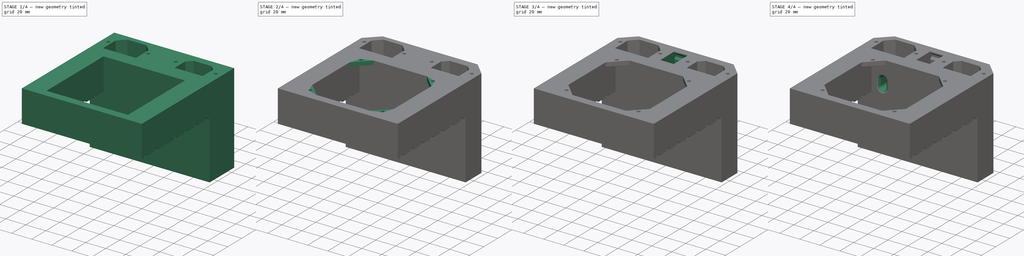
[diagram: build sequence overview — one tinted view per stage of 4, left to right]
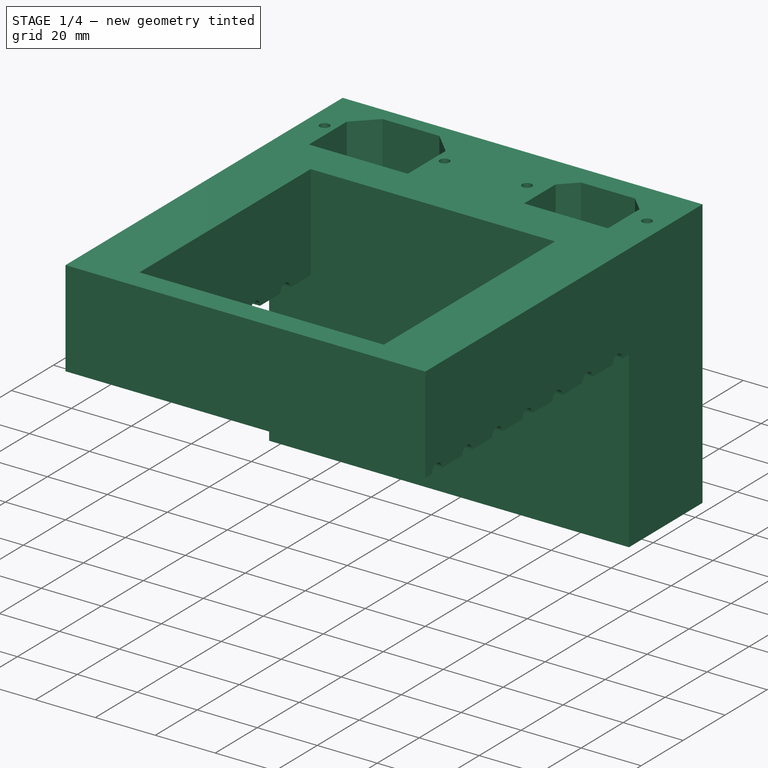
[diagram: stage 1 of 4 — iso view after this stage's code; geometry added in this stage tinted green]
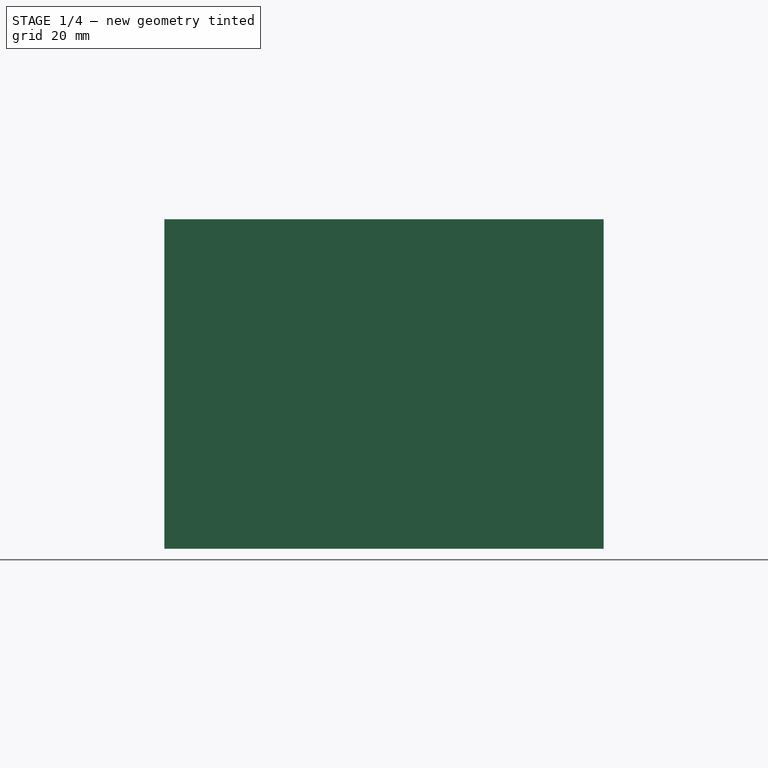
[diagram: stage 1 of 4 — front view after this stage's code; geometry added in this stage tinted green]
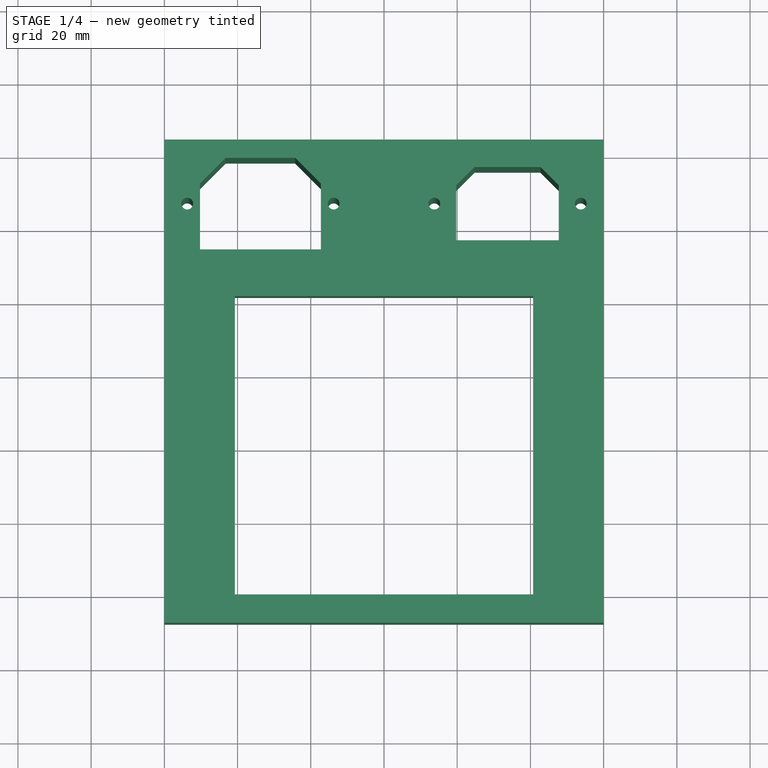
[diagram: stage 1 of 4 — top view after this stage's code; geometry added in this stage tinted green]
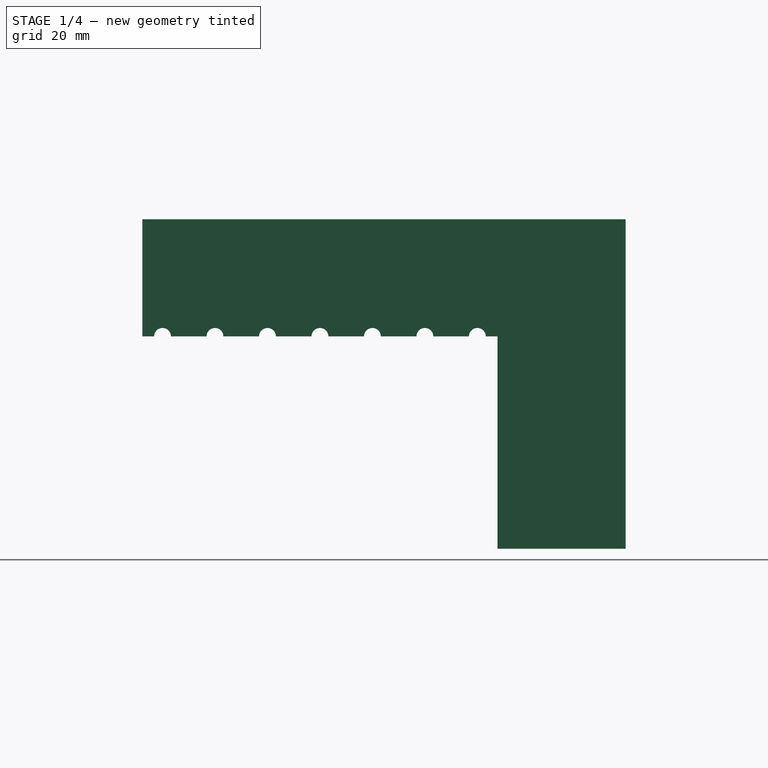
[diagram: stage 1 of 4 — right view after this stage's code; geometry added in this stage tinted green]
FCSTD DOCUMENT  (FreeCAD 0.18R15969 (Git))
Label: heatsinkmount
License: All rights reserved
LicenseURL: http://en.wikipedia.org/wiki/All_rights_reserved
objects: Sketcher::SketchObject×7, PartDesign::Pocket×5, PartDesign::Pad×2, PartDesign::Chamfer×2, PartDesign::Fillet×1, PartDesign::Body×1
note: 25 computed .brp shape members not serialized (recipe doc carries the construction recipe); baked Part::Feature solids carry a one-line shape summary decoded from their .brp

FEATURE [Sketcher::SketchObject] Sketch
  MapMode = 5
  Support = -> [XY_Plane]
  sketch-geometry (53):
    g0: LineSegment StartX=-60 StartY=-48.5 StartZ=0 EndX=60 EndY=-48.5 EndZ=0
    g1: LineSegment StartX=60 StartY=-48.5 StartZ=0 EndX=60 EndY=48.5 EndZ=0
    g2: LineSegment [constr] StartX=60 StartY=48.5 StartZ=0 EndX=-60 EndY=48.5 EndZ=0
    g3: LineSegment StartX=-60 StartY=48.5 StartZ=0 EndX=-60 EndY=-48.5 EndZ=0
    g4: LineSegment [constr] StartX=-60 StartY=48.5 StartZ=0 EndX=0 EndY=0 EndZ=0
    g5: LineSegment [constr] StartX=0 StartY=0 StartZ=0 EndX=60 EndY=48.5 EndZ=0
    g6: LineSegment [constr] StartX=0 StartY=0 StartZ=0 EndX=-60 EndY=-48.5 EndZ=0
    g7: LineSegment StartX=40.75 StartY=-40.75 StartZ=0 EndX=40.75 EndY=40.75 EndZ=0
    g8: LineSegment StartX=40.75 StartY=40.75 StartZ=0 EndX=-40.75 EndY=40.75 EndZ=0
    g9: LineSegment StartX=-40.75 StartY=40.75 StartZ=0 EndX=-40.75 EndY=-40.75 EndZ=0
    g10: LineSegment StartX=-40.75 StartY=-40.75 StartZ=0 EndX=40.75 EndY=-40.75 EndZ=0
    g11: Circle [constr] CenterX=0 CenterY=0 CenterZ=0 NormalX=0 NormalY=0 NormalZ=1 AngleXU=0 Radius=57.6292
    g12: LineSegment StartX=-60 StartY=48.5 StartZ=0 EndX=-60 EndY=83.5 EndZ=0
    g13: LineSegment StartX=-60 StartY=83.5 StartZ=0 EndX=60 EndY=83.5 EndZ=0
    g14: LineSegment StartX=60 StartY=83.5 StartZ=0 EndX=60 EndY=48.5 EndZ=0
    g15: Circle CenterX=-53.75 CenterY=66 CenterZ=0 NormalX=0 NormalY=0 NormalZ=1 AngleXU=0 Radius=1.6
    g16: Circle CenterX=-13.75 CenterY=66 CenterZ=0 NormalX=0 NormalY=0 NormalZ=1 AngleXU=0 Radius=1.6
    g17: Circle CenterX=13.75 CenterY=66 CenterZ=0 NormalX=0 NormalY=0 NormalZ=1 AngleXU=0 Radius=1.6
    g18: Circle CenterX=53.75 CenterY=66 CenterZ=0 NormalX=0 NormalY=0 NormalZ=1 AngleXU=0 Radius=1.6
    g19: LineSegment [constr] StartX=-53.75 StartY=66 StartZ=0 EndX=-13.75 EndY=66 EndZ=0
    g20: LineSegment [constr] StartX=13.75 StartY=66 StartZ=0 EndX=53.75 EndY=66 EndZ=0
    g21: LineSegment [constr] StartX=-53.75 StartY=66 StartZ=0 EndX=-33.75 EndY=83.5 EndZ=0
    g22: LineSegment [constr] StartX=-33.75 StartY=83.5 StartZ=0 EndX=-13.75 EndY=66 EndZ=0
    g23: LineSegment [constr] StartX=13.75 StartY=66 StartZ=0 EndX=33.75 EndY=83.5 EndZ=0
    g24: LineSegment [constr] StartX=33.75 StartY=83.5 StartZ=0 EndX=53.75 EndY=66 EndZ=0
    g25: LineSegment [constr] StartX=-13.75 StartY=66 StartZ=0 EndX=0 EndY=66 EndZ=0
    g26: LineSegment [constr] StartX=0 StartY=66 StartZ=0 EndX=13.75 EndY=66 EndZ=0
    g27: LineSegment [constr] StartX=-50.25 StartY=53.5 StartZ=0 EndX=-17.25 EndY=53.5 EndZ=0
    g28: LineSegment [constr] StartX=-17.25 StartY=53.5 StartZ=0 EndX=-17.25 EndY=78.5 EndZ=0
    g29: LineSegment [constr] StartX=-17.25 StartY=78.5 StartZ=0 EndX=-50.25 EndY=78.5 EndZ=0
    g30: LineSegment [constr] StartX=-50.25 StartY=78.5 StartZ=0 EndX=-50.25 EndY=53.5 EndZ=0
    g31: LineSegment [constr] StartX=19.75 StartY=76 StartZ=0 EndX=47.75 EndY=76 EndZ=0
    g32: LineSegment [constr] StartX=47.75 StartY=76 StartZ=0 EndX=47.75 EndY=56 EndZ=0
    g33: LineSegment [constr] StartX=47.75 StartY=56 StartZ=0 EndX=19.75 EndY=56 EndZ=0
    g34: LineSegment [constr] StartX=19.75 StartY=56 StartZ=0 EndX=19.75 EndY=76 EndZ=0
    g35: LineSegment StartX=-50.25 StartY=53.5 StartZ=0 EndX=-17.25 EndY=53.5 EndZ=0
    g36: LineSegment StartX=-43.25 StartY=78.5 StartZ=0 EndX=-24.25 EndY=78.5 EndZ=0
    g37: LineSegment StartX=-24.25 StartY=78.5 StartZ=0 EndX=-17.25 EndY=71.5 EndZ=0
    g38: LineSegment StartX=-17.25 StartY=71.5 StartZ=0 EndX=-17.25 EndY=53.5 EndZ=0
    g39: LineSegment StartX=-43.25 StartY=78.5 StartZ=0 EndX=-50.25 EndY=71.5 EndZ=0
    g40: LineSegment StartX=-50.25 StartY=71.5 StartZ=0 EndX=-50.25 EndY=53.5 EndZ=0
    g41: LineSegment [constr] StartX=-53.75 StartY=66 StartZ=0 EndX=-50.25 EndY=78.5 EndZ=0
    g42: LineSegment [constr] StartX=-13.75 StartY=66 StartZ=0 EndX=-17.25 EndY=53.5 EndZ=0
    g43: LineSegment [constr] StartX=-13.75 StartY=66 StartZ=0 EndX=-17.25 EndY=78.5 EndZ=0
    g44: LineSegment StartX=19.75 StartY=56 StartZ=0 EndX=47.75 EndY=56 EndZ=0
    g45: LineSegment StartX=47.75 StartY=56 StartZ=0 EndX=47.75 EndY=71 EndZ=0
    g46: LineSegment StartX=19.75 StartY=56 StartZ=0 EndX=19.75 EndY=71 EndZ=0
    g47: LineSegment StartX=19.75 StartY=71 StartZ=0 EndX=24.75 EndY=76 EndZ=0
    g48: LineSegment StartX=42.75 StartY=76 StartZ=0 EndX=47.75 EndY=71 EndZ=0
    g49: LineSegment StartX=24.75 StartY=76 StartZ=0 EndX=42.75 EndY=76 EndZ=0
    g50: LineSegment [constr] StartX=13.75 StartY=66 StartZ=0 EndX=19.75 EndY=76 EndZ=0
    g51: LineSegment [constr] StartX=13.75 StartY=66 StartZ=0 EndX=19.75 EndY=56 EndZ=0
    g52: LineSegment [constr] StartX=53.75 StartY=66 StartZ=0 EndX=47.75 EndY=76 EndZ=0
  constraints (139):
    c: Coincident(g0,g1)
    c: Coincident(g1,g2)
    c: Coincident(g2,g3)
    c: Coincident(g3,g0)
    c: Horizontal(g0)
    c: Horizontal(g2)
    c: Vertical(g1)
    c: Vertical(g3)
    c: Coincident(g4,g2)
    c: Coincident(g4,g-1)
    c: Coincident(g5,g-1)
    c: Coincident(g5,g1)
    c: Coincident(g6,g-1)
    c: Coincident(g6,g0)
    c: Equal(g4,g6)
    c: Equal(g6,g5)
    c: DistanceX(g2,g2) = 120
    c: DistanceY(g3,g3) = 97
    c: Coincident(g7,g8)
    c: Coincident(g8,g9)
    c: Coincident(g9,g10)
    c: Coincident(g10,g7)
    c: Equal(g7,g8)
    c: Equal(g7,g9)
    c: Equal(g7,g10)
    c: PointOnObject(g7,g11)
    c: PointOnObject(g8,g11)
    c: PointOnObject(g9,g11)
    c: PointOnObject(g10,g11)
    c: Coincident(g11,g-1)
    c: Horizontal(g8)
    c: DistanceX(g8,g8) = 81.5
    c: Coincident(g12,g3)
    c: Vertical(g12)
    c: Coincident(g13,g12)
    c: Horizontal(g13)
    c: Coincident(g14,g13)
    c: Coincident(g14,g1)
    c: Vertical(g14)
    c: DistanceY(g12,g12) = 35
    c: Coincident(g19,g15)
    c: Coincident(g19,g16)
    c: Coincident(g20,g17)
    c: Coincident(g20,g18)
    c: Horizontal(g20)
    c: Horizontal(g19)
    c: Equal(g19,g20)
    c: DistanceX(g19,g19) = 40
    c: Radius(g17) = 1.6
    c: Equal(g17,g18)
    c: Equal(g17,g16)
    c: Equal(g17,g15)
    c: Coincident(g21,g15)
    c: PointOnObject(g21,g13)
    c: Coincident(g22,g21)
    c: Coincident(g22,g16)
    c: PointOnObject(g23,g13)
    c: Coincident(g24,g23)
    c: Coincident(g24,g18)
    c: Equal(g24,g23)
    c: Equal(g23,g22)
    c: Equal(g22,g21)
    c: DistanceY(g15,g12) = 17.5
    c: Coincident(g17,g23)
    c: Coincident(g25,g16)
    c: Coincident(g26,g25)
    c: Coincident(g26,g17)
    c: PointOnObject(g25,g-2)
    c: Equal(g26,g25)
    c: Horizontal(g25)
    c: DistanceX(g16,g17) = 27.5
    c: Coincident(g27,g28)
    c: Coincident(g28,g29)
    c: Coincident(g29,g30)
    c: Coincident(g30,g27)
    c: Horizontal(g27)
    c: Horizontal(g29)
    c: Vertical(g28)
    c: Vertical(g30)
    c: DistanceX(g29,g29) = 33
    c: DistanceY(g30,g30) = 25
    c: Coincident(g31,g32)
    c: Coincident(g32,g33)
    c: Coincident(g33,g34)
    c: Coincident(g34,g31)
    c: Horizontal(g31)
    c: Horizontal(g33)
    c: Vertical(g32)
    c: Vertical(g34)
    c: DistanceX(g31,g31) = 28
    c: DistanceY(g32,g32) = 20
    c: PointOnObject(g36,g29)
    c: PointOnObject(g36,g29)
    c: Coincident(g37,g36)
    c: Coincident(g38,g37)
    c: Coincident(g38,g35)
    c: Vertical(g38)
    c: Coincident(g39,g36)
    c: Coincident(g40,g39)
    c: Coincident(g40,g35)
    c: Vertical(g40)
    c: Equal(g40,g38)
    c: Coincident(g35,g27)
    c: Coincident(g35,g27)
    c: Equal(g39,g37)
    c: DistanceY(g40,g40) = 18
    c: DistanceX(g36,g36) = 19
    c: Coincident(g41,g15)
    c: Coincident(g41,g29)
    c: Coincident(g42,g16)
    c: Coincident(g42,g35)
    c: Coincident(g43,g16)
    c: Coincident(g43,g28)
    c: Equal(g43,g42)
    c: Equal(g42,g41)
    c: Coincident(g44,g33)
    c: Coincident(g44,g32)
    c: Coincident(g45,g44)
    c: PointOnObject(g45,g32)
    c: Coincident(g46,g44)
    c: PointOnObject(g46,g34)
    c: Coincident(g47,g46)
    c: PointOnObject(g47,g31)
    c: PointOnObject(g48,g31)
    c: Coincident(g48,g45)
    c: Equal(g48,g47)
    c: Coincident(g49,g47)
    c: Coincident(g49,g48)
    c: Equal(g45,g46)
    c: DistanceY(g46,g46) = 15
    c: DistanceX(g49,g49) = 18
    c: Coincident(g50,g17)
    c: Coincident(g50,g31)
    c: Coincident(g51,g17)
    c: Coincident(g51,g44)
    c: Coincident(g52,g18)
    c: Coincident(g52,g31)
    c: Equal(g52,g50)
    c: Equal(g50,g51)
FEATURE [PartDesign::Pad] Pad
  Length = 90
  Length2 = 100
  Profile = -> Sketch
  Refine = true
  Type = 0
FEATURE [Sketcher::SketchObject] Sketch001
  ExternalGeometry = -> [Pad]
  MapMode = 5
  Placement = pos=(60,0,0) rot=(0.57735,0.57735,0.57735;2.0944rad)
  Support = -> [Pad]
  sketch-geometry (27):
    g0: LineSegment [constr] StartX=-70 StartY=58 StartZ=0 EndX=70 EndY=58 EndZ=0
    g1: LineSegment [constr] StartX=70 StartY=58 StartZ=0 EndX=0 EndY=7.1e-15 EndZ=0
    g2: LineSegment [constr] StartX=-70 StartY=58 StartZ=0 EndX=0 EndY=7.1e-15 EndZ=0
    g3: ArcOfCircle CenterX=-43 CenterY=58 CenterZ=0 NormalX=0 NormalY=0 NormalZ=1 AngleXU=0 Radius=2.3 StartAngle=4e-16 EndAngle=3.14159
    g4: ArcOfCircle CenterX=-28.6667 CenterY=58 CenterZ=0 NormalX=0 NormalY=0 NormalZ=1 AngleXU=0 Radius=2.3 StartAngle=-9e-16 EndAngle=3.14159
    g5: ArcOfCircle CenterX=0 CenterY=58 CenterZ=0 NormalX=0 NormalY=0 NormalZ=1 AngleXU=0 Radius=2.3 StartAngle=-9e-16 EndAngle=3.14159
    g6: ArcOfCircle CenterX=-14.3333 CenterY=58 CenterZ=0 NormalX=0 NormalY=0 NormalZ=1 AngleXU=0 Radius=2.3 StartAngle=-9e-16 EndAngle=3.14159
    g7: ArcOfCircle CenterX=14.3333 CenterY=58 CenterZ=0 NormalX=0 NormalY=0 NormalZ=1 AngleXU=0 Radius=2.3 StartAngle=1.3e-15 EndAngle=3.14159
    g8: ArcOfCircle CenterX=28.6667 CenterY=58 CenterZ=0 NormalX=0 NormalY=0 NormalZ=1 AngleXU=0 Radius=2.3 StartAngle=5e-16 EndAngle=3.14159
    g9: ArcOfCircle CenterX=43 CenterY=58 CenterZ=0 NormalX=0 NormalY=0 NormalZ=1 AngleXU=0 Radius=2.3 StartAngle=8e-16 EndAngle=3.14159
    g10: LineSegment [constr] StartX=-43 StartY=58 StartZ=0 EndX=-28.6667 EndY=58 EndZ=0
    g11: LineSegment [constr] StartX=-28.6667 StartY=58 StartZ=0 EndX=-14.3333 EndY=58 EndZ=0
    g12: LineSegment [constr] StartX=-14.3333 StartY=58 StartZ=0 EndX=0 EndY=58 EndZ=0
    g13: LineSegment [constr] StartX=0 StartY=58 StartZ=0 EndX=14.3333 EndY=58 EndZ=0
    g14: LineSegment [constr] StartX=14.3333 StartY=58 StartZ=0 EndX=28.6667 EndY=58 EndZ=0
    g15: LineSegment [constr] StartX=28.6667 StartY=58 StartZ=0 EndX=43 EndY=58 EndZ=0
    g16: LineSegment StartX=-40.7 StartY=58 StartZ=0 EndX=-30.9667 EndY=58 EndZ=0
    g17: LineSegment StartX=-26.3667 StartY=58 StartZ=0 EndX=-16.6333 EndY=58 EndZ=0
    g18: LineSegment StartX=-12.0333 StartY=58 StartZ=0 EndX=-2.3 EndY=58 EndZ=0
    g19: LineSegment StartX=2.3 StartY=58 StartZ=0 EndX=12.0333 EndY=58 EndZ=0
    g20: LineSegment StartX=16.6333 StartY=58 StartZ=0 EndX=26.3667 EndY=58 EndZ=0
    g21: LineSegment StartX=30.9667 StartY=58 StartZ=0 EndX=40.7 EndY=58 EndZ=0
    g22: LineSegment StartX=-45.3 StartY=58 StartZ=0 EndX=-48.5 EndY=58 EndZ=0
    g23: LineSegment StartX=-48.5 StartY=0 StartZ=0 EndX=-48.5 EndY=58 EndZ=0
    g24: LineSegment StartX=-48.5 StartY=0 StartZ=0 EndX=48.5 EndY=-0.061623 EndZ=0
    g25: LineSegment StartX=48.5 StartY=-0.061623 StartZ=0 EndX=48.5 EndY=58 EndZ=0
    g26: LineSegment StartX=48.5 StartY=58 StartZ=0 EndX=45.3 EndY=58 EndZ=0
  constraints (79):
    c: Horizontal(g0)
    c: Coincident(g1,g0)
    c: Coincident(g1,g-1)
    c: Coincident(g2,g0)
    c: Coincident(g2,g-1)
    c: Equal(g1,g2)
    c: PointOnObject(g3,g0)
    c: PointOnObject(g3,g0)
    c: PointOnObject(g3,g0)
    c: PointOnObject(g4,g0)
    c: PointOnObject(g4,g0)
    c: PointOnObject(g4,g0)
    c: PointOnObject(g5,g0)
    c: PointOnObject(g5,g0)
    c: PointOnObject(g5,g0)
    c: PointOnObject(g5,g-2)
    c: PointOnObject(g6,g0)
    c: PointOnObject(g6,g0)
    c: PointOnObject(g6,g0)
    c: PointOnObject(g7,g0)
    c: PointOnObject(g7,g0)
    c: PointOnObject(g7,g0)
    c: PointOnObject(g8,g0)
    c: PointOnObject(g8,g0)
    c: PointOnObject(g8,g0)
    c: PointOnObject(g9,g0)
    c: PointOnObject(g9,g0)
    c: PointOnObject(g9,g0)
    c: Equal(g7,g8)
    c: Equal(g8,g9)
    c: Equal(g9,g5)
    c: Equal(g5,g6)
    c: Equal(g6,g4)
    c: Equal(g4,g3)
    c: Radius(g3) = 2.3
    c: Coincident(g10,g3)
    c: Coincident(g10,g4)
    c: Coincident(g11,g4)
    c: Coincident(g11,g6)
    c: Coincident(g12,g6)
    c: Coincident(g12,g5)
    c: Coincident(g13,g5)
    c: Coincident(g13,g7)
    c: Coincident(g14,g7)
    c: Coincident(g14,g8)
    c: Coincident(g15,g8)
    c: Coincident(g15,g9)
    c: Equal(g10,g11)
    c: Equal(g11,g12)
    c: Equal(g12,g13)
    c: Equal(g13,g14)
    c: Equal(g14,g15)
    c: DistanceX(g3,g9) = 86
    c: Coincident(g16,g3)
    c: Coincident(g16,g4)
    c: Coincident(g17,g4)
    c: Coincident(g17,g6)
    c: Coincident(g18,g6)
    c: Coincident(g18,g5)
    c: Coincident(g19,g5)
    c: Coincident(g19,g7)
    c: Coincident(g20,g7)
    c: Coincident(g20,g8)
    c: Coincident(g21,g8)
    c: Coincident(g21,g9)
    c: Coincident(g22,g3)
    c: PointOnObject(g22,g-3)
    c: Horizontal(g22)
    c: Coincident(g23,g-3)
    c: Coincident(g23,g22)
    c: Coincident(g24,g23)
    c: DistanceX(g0,g0) = 140
    c: Coincident(g25,g24)
    c: PointOnObject(g25,g0)
    c: Vertical(g25)
    c: Coincident(g26,g25)
    c: Coincident(g26,g9)
    c: Equal(g26,g22)
    c: DistanceY(g23,g22) = 58
FEATURE [PartDesign::Pocket] Pocket
  BaseFeature = -> Pad
  Length = 5
  Length2 = 100
  Profile = -> Sketch001
  Refine = true
  Type = 1
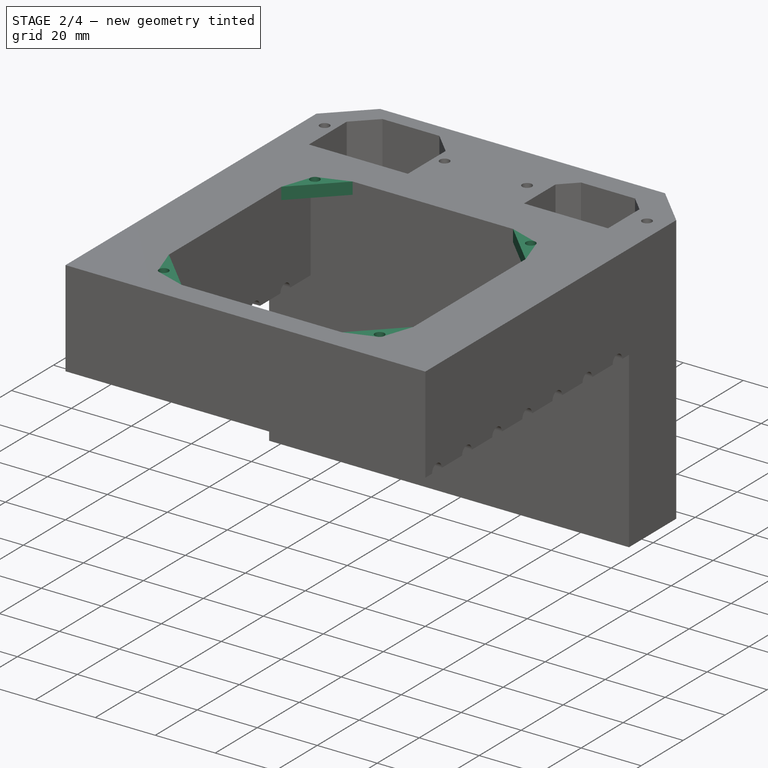
[diagram: stage 2 of 4 — iso view after this stage's code; geometry added in this stage tinted green]
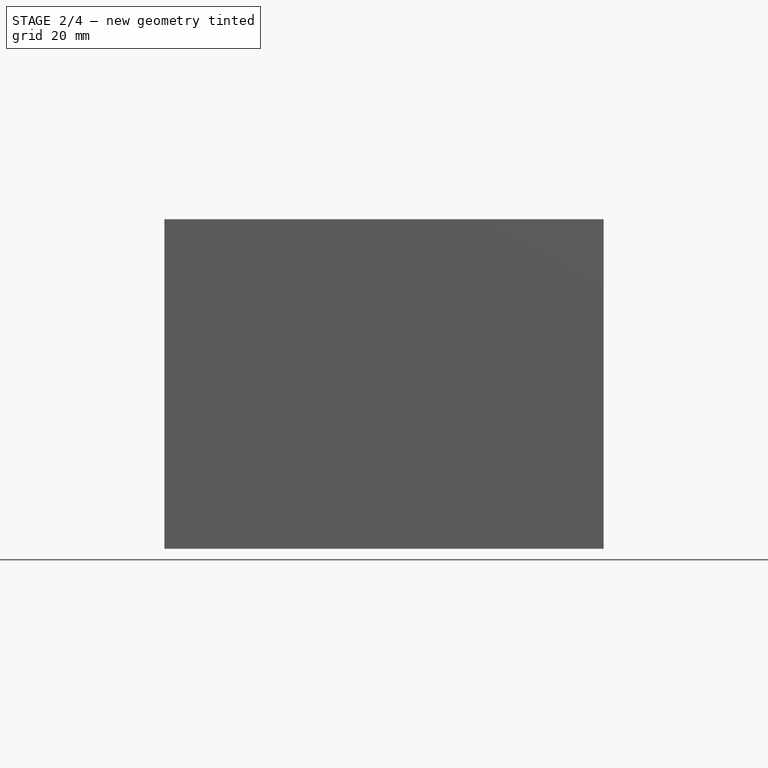
[diagram: stage 2 of 4 — front view after this stage's code; geometry added in this stage tinted green]
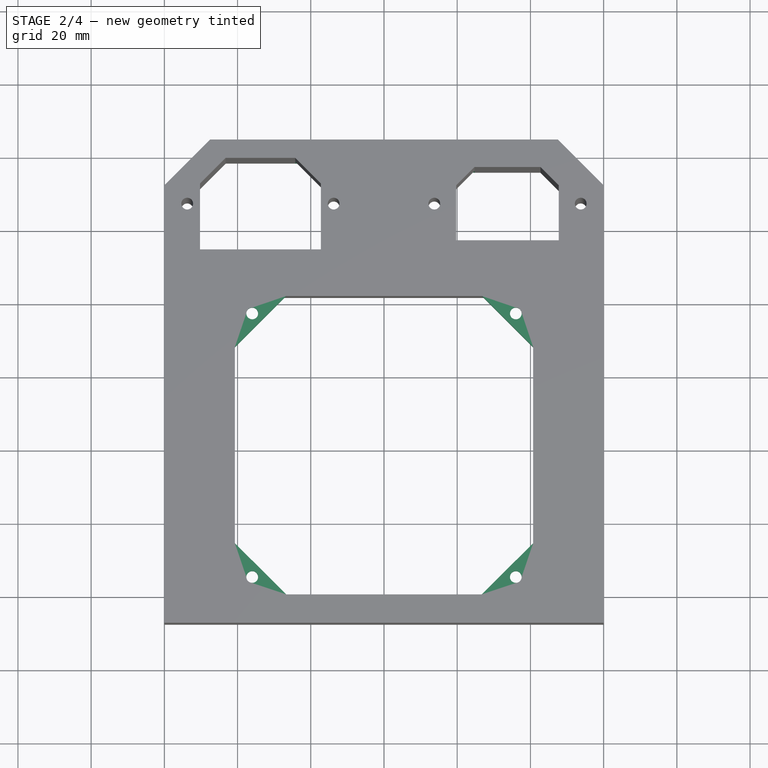
[diagram: stage 2 of 4 — top view after this stage's code; geometry added in this stage tinted green]
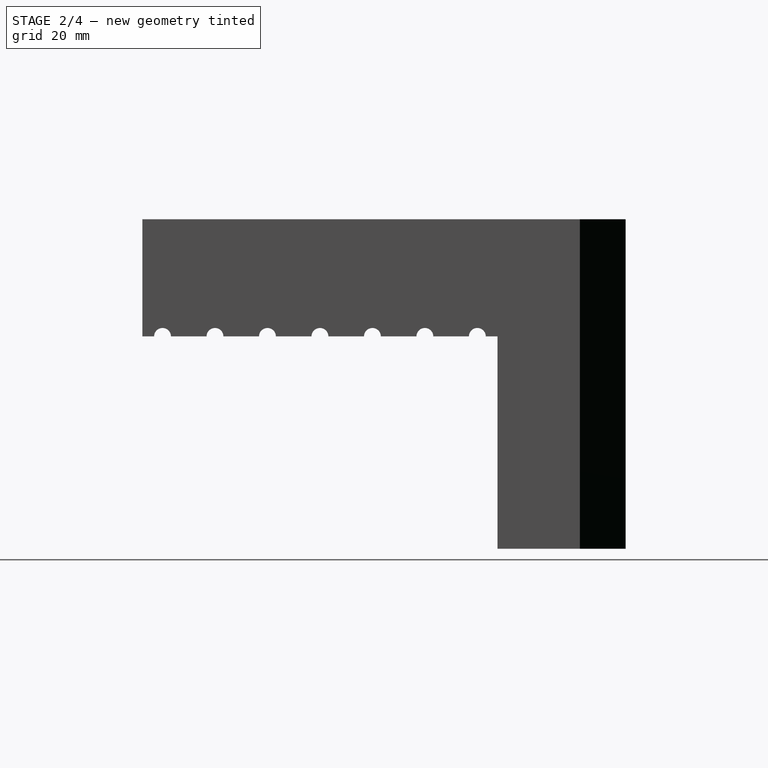
[diagram: stage 2 of 4 — right view after this stage's code; geometry added in this stage tinted green]
FEATURE [Sketcher::SketchObject] Sketch002
  ExternalGeometry = -> [Pad]
  MapMode = 5
  Placement = pos=(0,0,90) rot=(0,0,1;0rad)
  Support = -> [Pad]
  sketch-geometry (21):
    g0: LineSegment StartX=-40.75 StartY=-40.75 StartZ=0 EndX=-40.75 EndY=-26.75 EndZ=0
    g1: LineSegment StartX=-40.75 StartY=-26.75 StartZ=0 EndX=-26.75 EndY=-40.75 EndZ=0
    g2: LineSegment StartX=-26.75 StartY=-40.75 StartZ=0 EndX=-40.75 EndY=-40.75 EndZ=0
    g3: LineSegment StartX=40.75 StartY=-40.75 StartZ=0 EndX=26.75 EndY=-40.75 EndZ=0
    g4: LineSegment StartX=26.75 StartY=-40.75 StartZ=0 EndX=40.75 EndY=-26.75 EndZ=0
    g5: LineSegment StartX=40.75 StartY=-26.75 StartZ=0 EndX=40.75 EndY=-40.75 EndZ=0
    g6: LineSegment StartX=40.75 StartY=40.75 StartZ=0 EndX=40.75 EndY=26.75 EndZ=0
    g7: LineSegment StartX=40.75 StartY=40.75 StartZ=0 EndX=26.75 EndY=40.75 EndZ=0
    g8: LineSegment StartX=26.75 StartY=40.75 StartZ=0 EndX=40.75 EndY=26.75 EndZ=0
    g9: LineSegment StartX=-40.75 StartY=40.75 StartZ=0 EndX=-26.75 EndY=40.75 EndZ=0
    g10: LineSegment StartX=-40.75 StartY=40.75 StartZ=0 EndX=-40.75 EndY=26.75 EndZ=0
    g11: LineSegment StartX=-40.75 StartY=26.75 StartZ=0 EndX=-26.75 EndY=40.75 EndZ=0
    g12: LineSegment [constr] StartX=-36 StartY=-36 StartZ=0 EndX=36 EndY=-36 EndZ=0
    g13: LineSegment [constr] StartX=36 StartY=-36 StartZ=0 EndX=36 EndY=36 EndZ=0
    g14: LineSegment [constr] StartX=36 StartY=36 StartZ=0 EndX=-36 EndY=36 EndZ=0
    g15: LineSegment [constr] StartX=-36 StartY=36 StartZ=0 EndX=-36 EndY=-36 EndZ=0
    g16: Circle [constr] CenterX=0 CenterY=0 CenterZ=0 NormalX=0 NormalY=0 NormalZ=1 AngleXU=0 Radius=50.9117
    g17: Circle CenterX=36 CenterY=-36 CenterZ=0 NormalX=0 NormalY=0 NormalZ=1 AngleXU=0 Radius=1.6
    g18: Circle CenterX=-36 CenterY=-36 CenterZ=0 NormalX=0 NormalY=0 NormalZ=1 AngleXU=0 Radius=1.6
    g19: Circle CenterX=-36 CenterY=36 CenterZ=0 NormalX=0 NormalY=0 NormalZ=1 AngleXU=0 Radius=1.6
    g20: Circle CenterX=36 CenterY=36 CenterZ=0 NormalX=0 NormalY=0 NormalZ=1 AngleXU=0 Radius=1.6
  constraints (54):
    c: Coincident(g0,g-4)
    c: PointOnObject(g0,g-3)
    c: Coincident(g1,g0)
    c: PointOnObject(g1,g-4)
    c: Coincident(g2,g1)
    c: Coincident(g2,g0)
    c: Equal(g2,g0)
    c: Coincident(g3,g-5)
    c: PointOnObject(g3,g-4)
    c: Coincident(g4,g3)
    c: PointOnObject(g4,g-5)
    c: Coincident(g5,g4)
    c: Coincident(g5,g3)
    c: Equal(g5,g3)
    c: Coincident(g6,g-6)
    c: PointOnObject(g6,g-5)
    c: Coincident(g7,g6)
    c: PointOnObject(g7,g-6)
    c: Coincident(g8,g7)
    c: Coincident(g8,g6)
    c: Equal(g7,g6)
    c: Coincident(g9,g-6)
    c: PointOnObject(g9,g-6)
    c: Coincident(g10,g9)
    c: PointOnObject(g10,g-3)
    c: Coincident(g11,g10)
    c: Coincident(g11,g9)
    c: Equal(g9,g10)
    c: Equal(g11,g1)
    c: Equal(g1,g4)
    c: Equal(g4,g8)
    c: Coincident(g12,g13)
    c: Coincident(g13,g14)
    c: Coincident(g14,g15)
    c: Coincident(g15,g12)
    c: Equal(g12,g13)
    c: Equal(g12,g14)
    c: Equal(g12,g15)
    c: PointOnObject(g12,g16)
    c: PointOnObject(g13,g16)
    c: PointOnObject(g14,g16)
    c: PointOnObject(g15,g16)
    c: Coincident(g16,g-1)
    c: Horizontal(g12)
    c: DistanceX(g12,g12) = 72
    c: Coincident(g17,g12)
    c: Coincident(g18,g12)
    c: Coincident(g19,g14)
    c: Coincident(g20,g13)
    c: Equal(g20,g19)
    c: Equal(g19,g18)
    c: Equal(g18,g17)
    c: Radius(g17) = 1.6
    c: DistanceX(g7,g7) = 14
FEATURE [PartDesign::Pad] Pad001
  BaseFeature = -> Pocket
  Length = 4
  Length2 = 100
  Profile = -> Sketch002
  Refine = true
  Reversed = true
  Type = 0
FEATURE [Sketcher::SketchObject] Sketch004
  ExternalGeometry = -> [Pad001]
  MapMode = 5
  Placement = pos=(0,0,0) rot=(1,0,0;3.14159rad)
  Support = -> [Pad001]
  sketch-geometry (10):
    g0: LineSegment StartX=-17.25 StartY=-53.5 StartZ=0 EndX=19.75 EndY=-56 EndZ=0
    g1: LineSegment StartX=19.75 StartY=-56 StartZ=0 EndX=47.75 EndY=-56 EndZ=0
    g2: LineSegment StartX=47.75 StartY=-56 StartZ=0 EndX=47.75 EndY=-71 EndZ=0
    g3: LineSegment StartX=47.75 StartY=-71 StartZ=0 EndX=42.75 EndY=-76 EndZ=0
    g4: LineSegment StartX=42.75 StartY=-76 StartZ=0 EndX=24.75 EndY=-76 EndZ=0
    g5: LineSegment StartX=24.75 StartY=-76 StartZ=0 EndX=-24.25 EndY=-78.5 EndZ=0
    g6: LineSegment StartX=-24.25 StartY=-78.5 StartZ=0 EndX=-43.25 EndY=-78.5 EndZ=0
    g7: LineSegment StartX=-43.25 StartY=-78.5 StartZ=0 EndX=-50.25 EndY=-71.5 EndZ=0
    g8: LineSegment StartX=-50.25 StartY=-71.5 StartZ=0 EndX=-50.25 EndY=-53.5 EndZ=0
    g9: LineSegment StartX=-50.25 StartY=-53.5 StartZ=0 EndX=-17.25 EndY=-53.5 EndZ=0
  constraints (20):
    c: Coincident(g-3,g0)
    c: Coincident(g0,g-7)
    c: Coincident(g0,g1)
    c: Coincident(g1,g-8)
    c: Coincident(g1,g2)
    c: Coincident(g2,g-9)
    c: Coincident(g2,g3)
    c: Coincident(g3,g-10)
    c: Coincident(g3,g4)
    c: Coincident(g4,g-10)
    c: Coincident(g4,g5)
    c: Coincident(g5,g-4)
    c: Coincident(g5,g6)
    c: Coincident(g6,g-5)
    c: Coincident(g6,g7)
    c: Coincident(g7,g-6)
    c: Coincident(g7,g8)
    c: Coincident(g8,g-6)
    c: Coincident(g8,g9)
    c: Coincident(g9,g0)
FEATURE [PartDesign::Pocket] Pocket001
  BaseFeature = -> Pad001
  Length = 30
  Length2 = 100
  Profile = -> Sketch004
  Refine = true
  Type = 0
FEATURE [PartDesign::Chamfer] Chamfer
  Base = -> Pocket001 [Edge9,Edge56]
  BaseFeature = -> Pocket001
  Size = 12.5
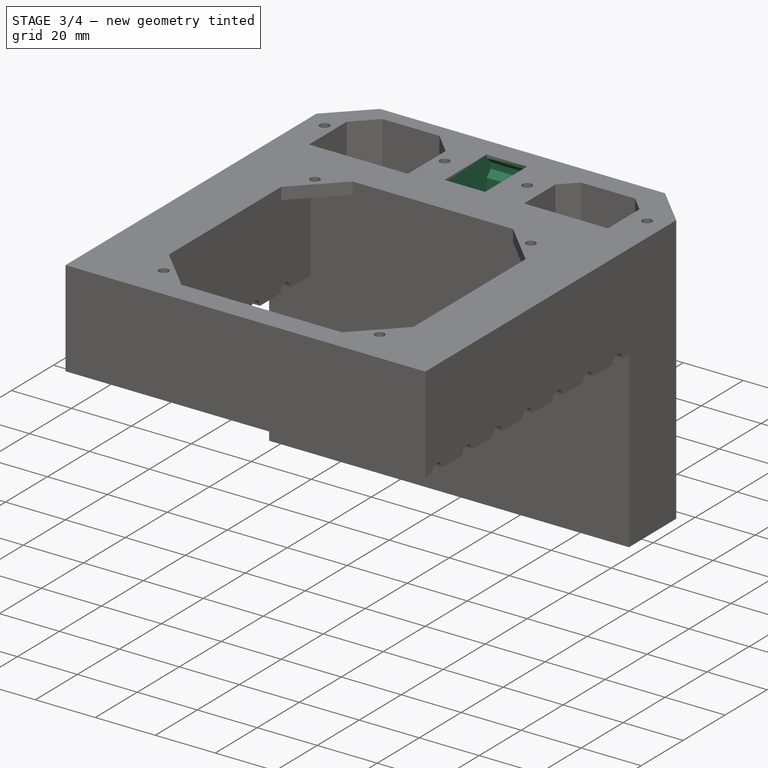
[diagram: stage 3 of 4 — iso view after this stage's code; geometry added in this stage tinted green]
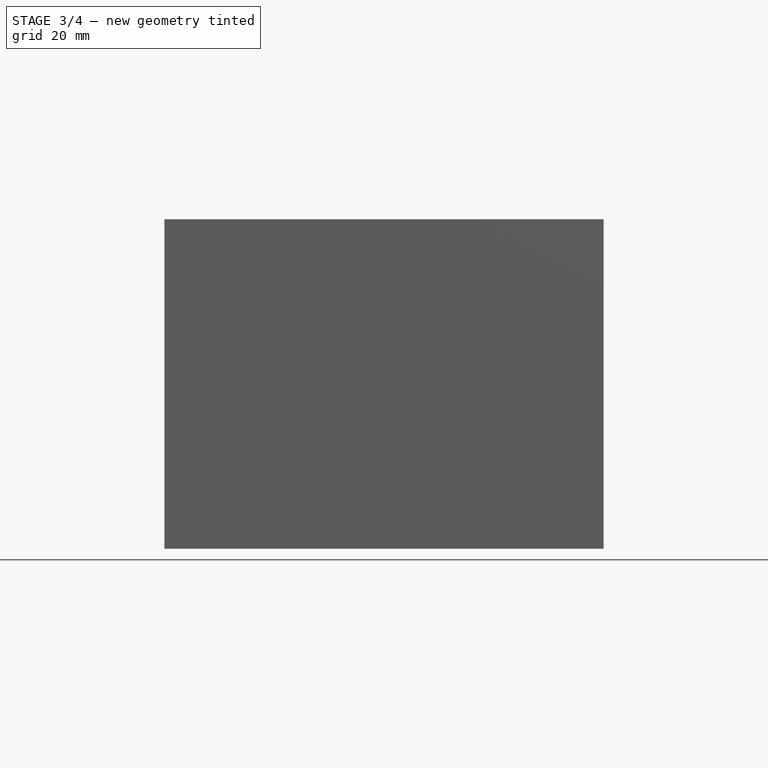
[diagram: stage 3 of 4 — front view after this stage's code; geometry added in this stage tinted green]
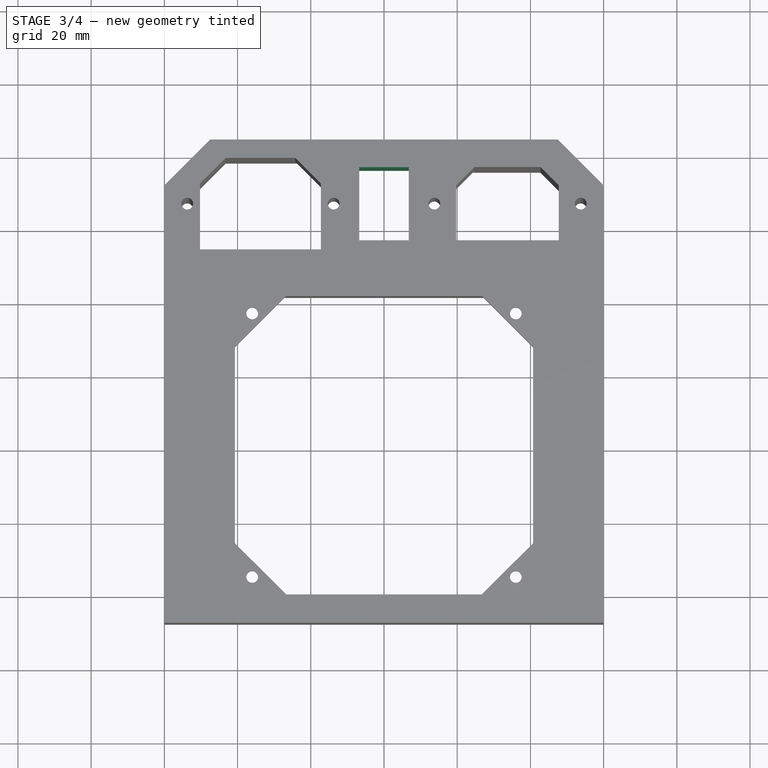
[diagram: stage 3 of 4 — top view after this stage's code; geometry added in this stage tinted green]
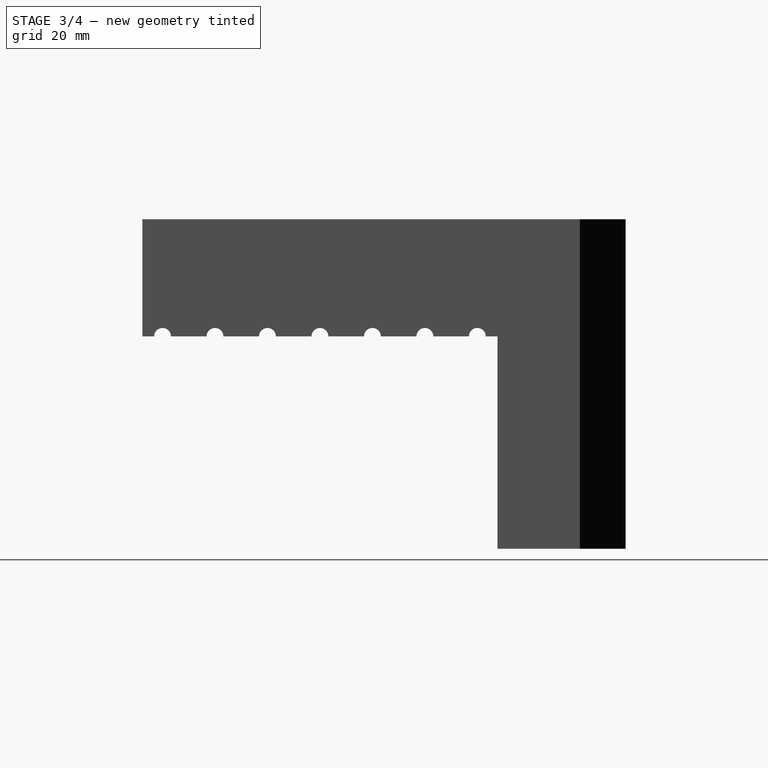
[diagram: stage 3 of 4 — right view after this stage's code; geometry added in this stage tinted green]
FEATURE [Sketcher::SketchObject] Sketch005
  MapMode = 5
  Placement = pos=(0,0,90) rot=(0,0,1;0rad)
  sketch-geometry (7):
    g0: LineSegment StartX=-6.75 StartY=76 StartZ=0 EndX=6.75 EndY=76 EndZ=0
    g1: LineSegment StartX=6.75 StartY=76 StartZ=0 EndX=6.75 EndY=56 EndZ=0
    g2: LineSegment StartX=6.75 StartY=56 StartZ=0 EndX=-6.75 EndY=56 EndZ=0
    g3: LineSegment StartX=-6.75 StartY=56 StartZ=0 EndX=-6.75 EndY=76 EndZ=0
    g4: LineSegment [constr] StartX=-6.75 StartY=76 StartZ=0 EndX=0 EndY=66 EndZ=0
    g5: LineSegment [constr] StartX=6.75 StartY=76 StartZ=0 EndX=0 EndY=66 EndZ=0
    g6: LineSegment [constr] StartX=0 StartY=66 StartZ=0 EndX=6.75 EndY=56 EndZ=0
  constraints (19):
    c: Coincident(g0,g1)
    c: Coincident(g1,g2)
    c: Coincident(g2,g3)
    c: Coincident(g3,g0)
    c: Horizontal(g0)
    c: Horizontal(g2)
    c: Vertical(g1)
    c: Vertical(g3)
    c: Coincident(g4,g0)
    c: PointOnObject(g4,g-2)
    c: Coincident(g5,g0)
    c: Coincident(g5,g4)
    c: Coincident(g6,g4)
    c: Coincident(g6,g1)
    c: Equal(g6,g5)
    c: Equal(g5,g4)
    c: DistanceY(g-1,g4) = 66
    c: DistanceX(g0,g0) = 13.5
    c: DistanceY(g3,g3) = 20
FEATURE [PartDesign::Pocket] Pocket002
  BaseFeature = -> Chamfer
  Length = 5
  Length2 = 100
  Profile = -> Sketch005
  Refine = true
  Type = 1
FEATURE [Sketcher::SketchObject] Sketch006
  AttachmentOffset = pos=(0,0,-4) rot=(0,0,1;0rad)
  ExternalGeometry = -> [Pocket002]
  MapMode = 5
  Placement = pos=(0,0,86) rot=(0,0,1;0rad)
  Support = -> [Pocket002]
  sketch-geometry (4):
    g0: LineSegment StartX=-6.75 StartY=78 StartZ=0 EndX=6.75 EndY=78 EndZ=0
    g1: LineSegment StartX=6.75 StartY=78 StartZ=0 EndX=6.75 EndY=54 EndZ=0
    g2: LineSegment StartX=6.75 StartY=54 StartZ=0 EndX=-6.75 EndY=54 EndZ=0
    g3: LineSegment StartX=-6.75 StartY=54 StartZ=0 EndX=-6.75 EndY=78 EndZ=0
  constraints (12):
    c: Coincident(g0,g1)
    c: Coincident(g1,g2)
    c: Coincident(g2,g3)
    c: Coincident(g3,g0)
    c: Horizontal(g0)
    c: Horizontal(g2)
    c: Vertical(g1)
    c: Vertical(g3)
    c: PointOnObject(g0,g-3)
    c: PointOnObject(g1,g-4)
    c: DistanceY(g-3,g0) = 2
    c: DistanceY(g2,g-3) = 2
FEATURE [PartDesign::Pocket] Pocket003
  BaseFeature = -> Pocket002
  Length = 2
  Length2 = 100
  Midplane = true
  Profile = -> Sketch006
  Refine = true
  Type = 0
FEATURE [PartDesign::Chamfer] Chamfer001
  Base = -> Pocket003 [Edge190,Edge230,Edge187,Edge227]
  BaseFeature = -> Pocket003
  Size = 1.95
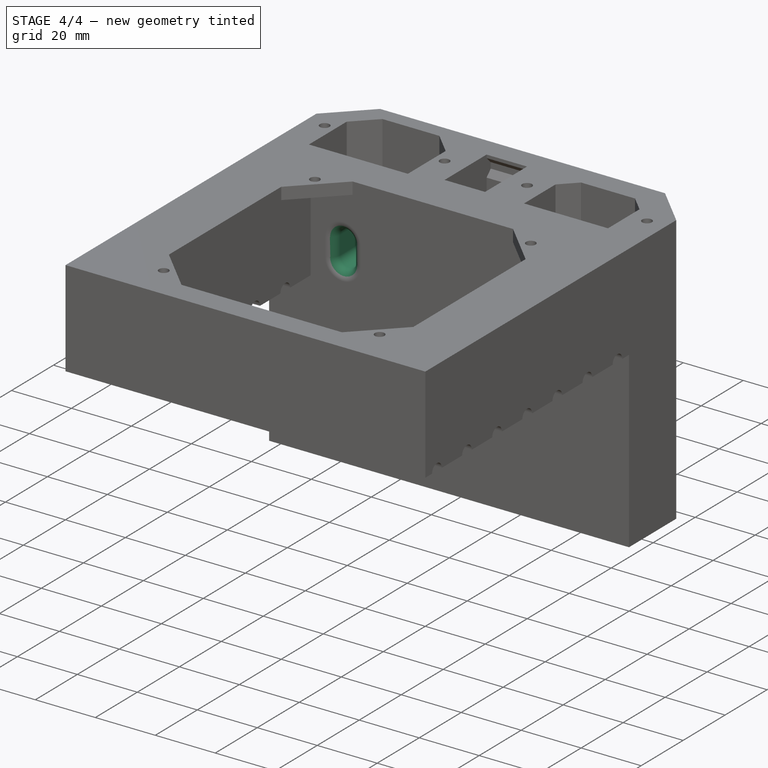
[diagram: stage 4 of 4 — iso view after this stage's code; geometry added in this stage tinted green]
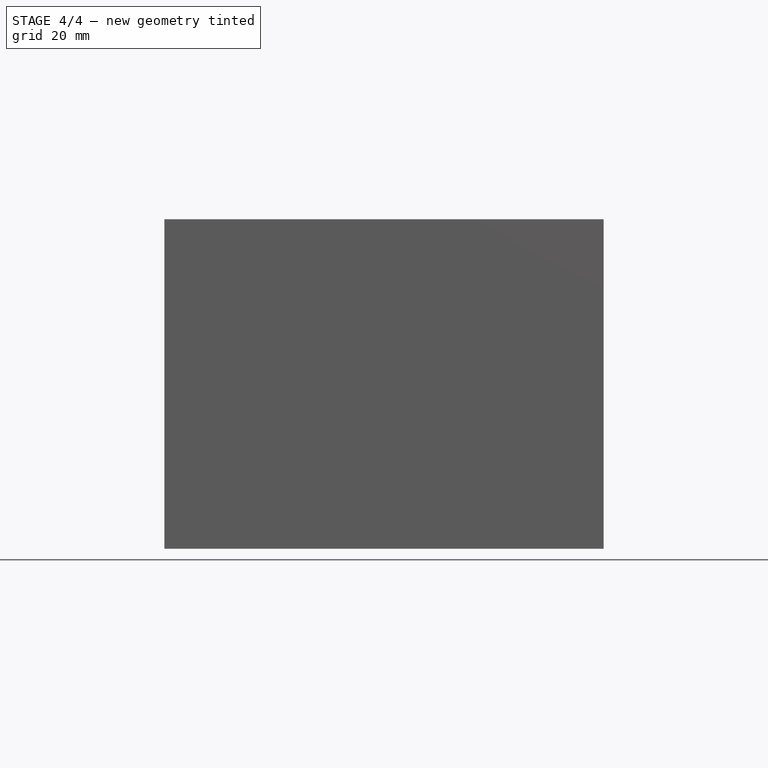
[diagram: stage 4 of 4 — front view after this stage's code; geometry added in this stage tinted green]
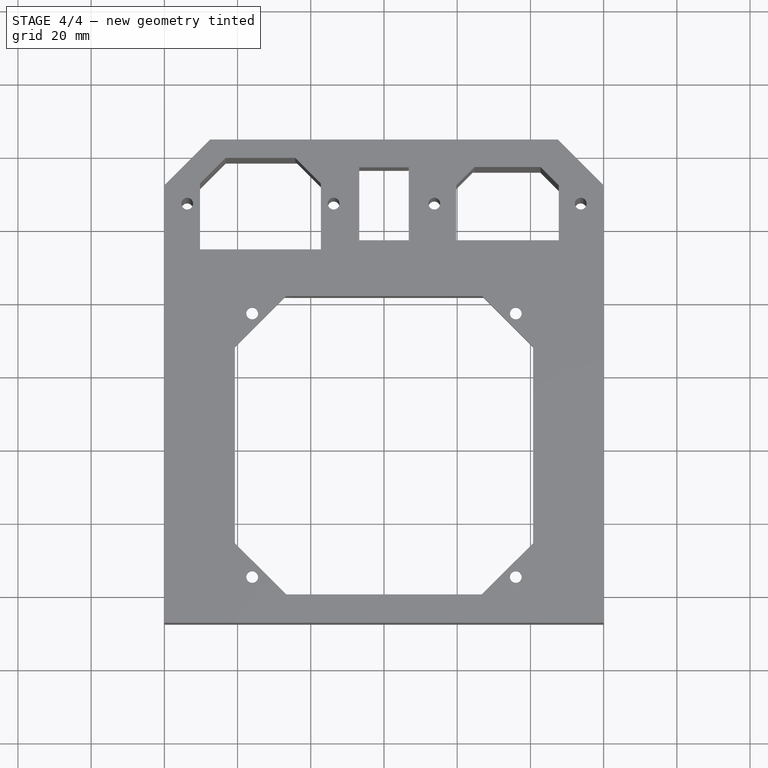
[diagram: stage 4 of 4 — top view after this stage's code; geometry added in this stage tinted green]
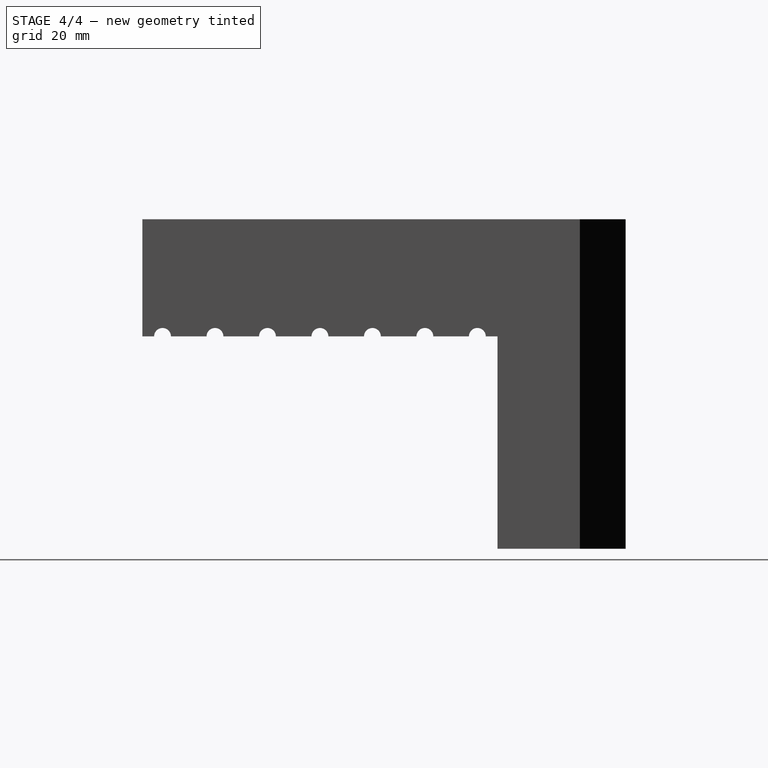
[diagram: stage 4 of 4 — right view after this stage's code; geometry added in this stage tinted green]
FEATURE [Sketcher::SketchObject] Sketch007
  MapMode = 5
  Placement = pos=(0,40.75,0) rot=(1,0,0;1.5708rad)
  Support = -> [Chamfer001]
  sketch-geometry (4):
    g0: ArcOfCircle CenterX=-30 CenterY=71 CenterZ=0 NormalX=0 NormalY=0 NormalZ=1 AngleXU=0 Radius=3 StartAngle=1.338e-13 EndAngle=3.14159
    g1: ArcOfCircle CenterX=-30 CenterY=65 CenterZ=0 NormalX=0 NormalY=0 NormalZ=1 AngleXU=0 Radius=3 StartAngle=3.14159 EndAngle=6.28319
    g2: LineSegment StartX=-33 StartY=71 StartZ=0 EndX=-33 EndY=65 EndZ=0
    g3: LineSegment StartX=-27 StartY=71 StartZ=0 EndX=-27 EndY=65 EndZ=0
  constraints (10):
    c: Tangent(g0,g3) = 1.5708
    c: Tangent(g0,g2) = -1.5708
    c: Tangent(g2,g1) = -1.5708
    c: Tangent(g3,g1) = 1.5708
    c: Vertical(g2)
    c: Equal(g0,g1)
    c: Radius(g1) = 3
    c: DistanceY(g1,g0) = 6
    c: DistanceY(g-1,g1) = 65
    c: DistanceX(g1,g-1) = 30
FEATURE [PartDesign::Pocket] Pocket004
  BaseFeature = -> Chamfer001
  Length = 15
  Length2 = 100
  Profile = -> Sketch007
  Refine = true
  Type = 0
FEATURE [PartDesign::Fillet] Fillet
  Base = -> Pocket004 [Edge211,Edge190]
  BaseFeature = -> Pocket004
  Radius = 3
FEATURE [PartDesign::Body] Body
  Group = -> [Sketch,Pad,Sketch001,Pocket,Sketch002,Pad001,Sketch004,Pocket001,Chamfer,Sketch005,Pocket002,Sketch006,Pocket003,Chamfer001,Sketch007,Pocket004,Fillet]
  Origin = -> Origin
  Tip = -> Fillet
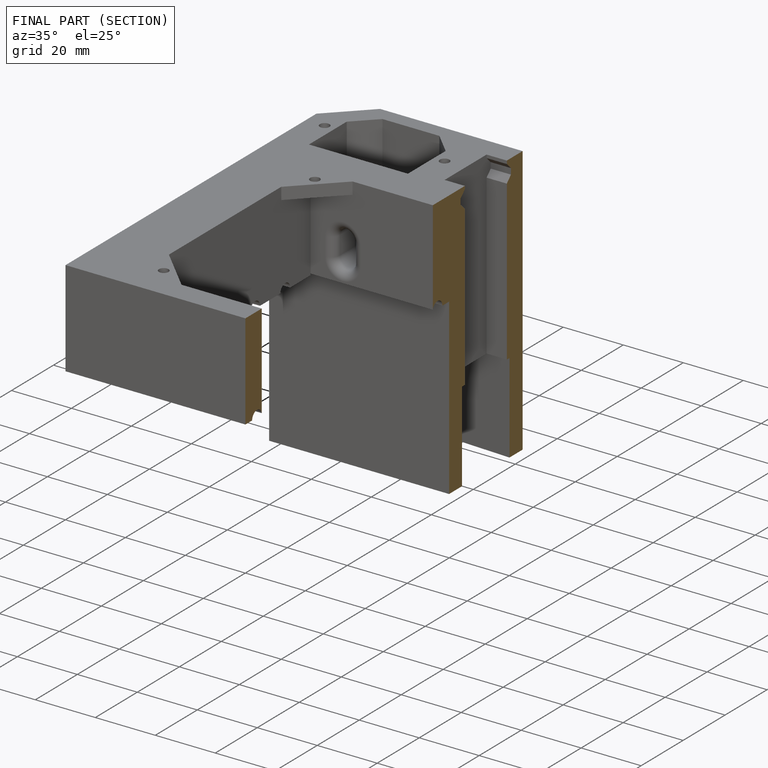
[diagram: finished part — half-section view (interior)]
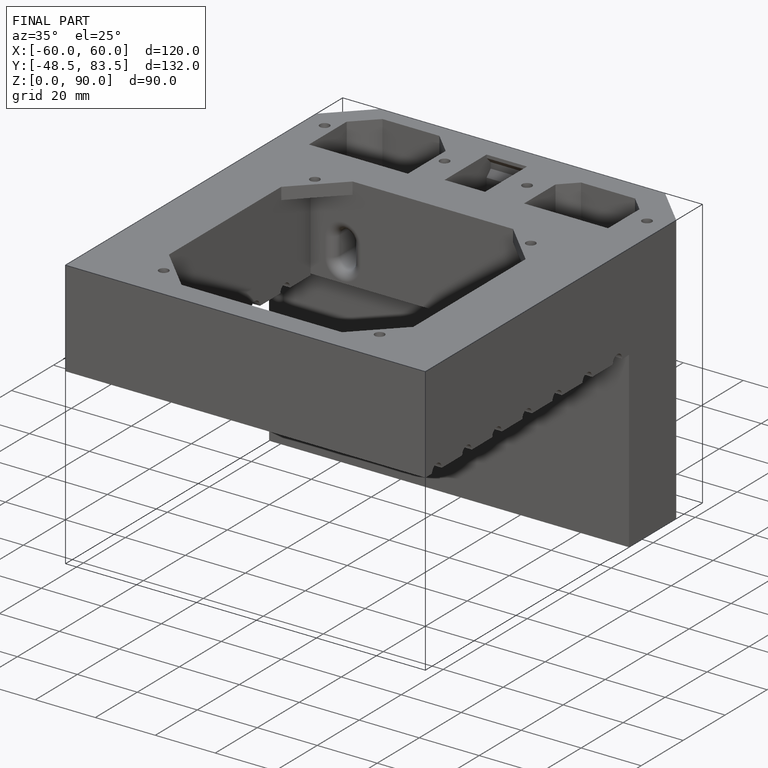
[diagram: finished part — iso view with bounding-box wireframe]
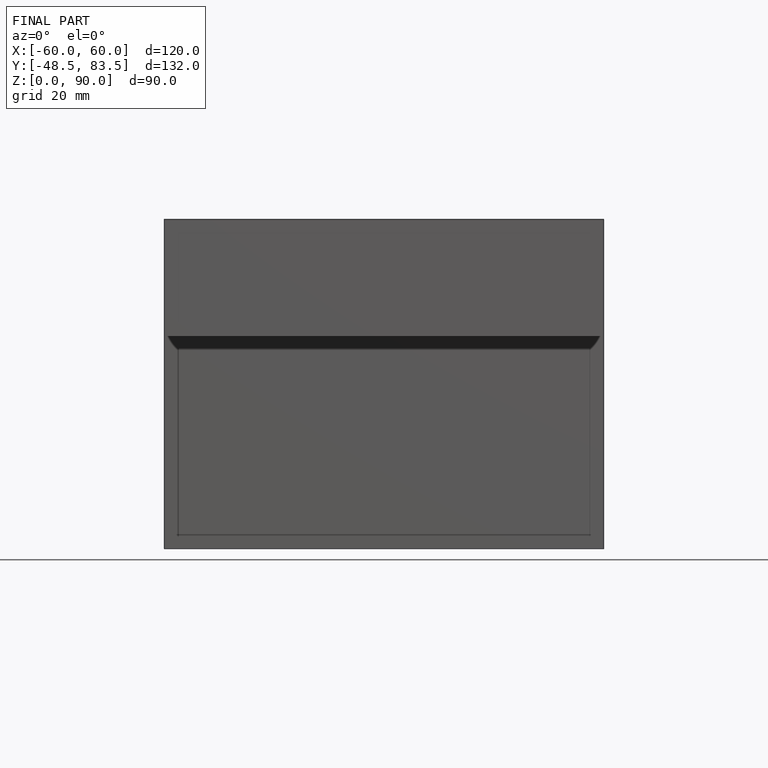
[diagram: finished part — front view with bounding-box wireframe]
